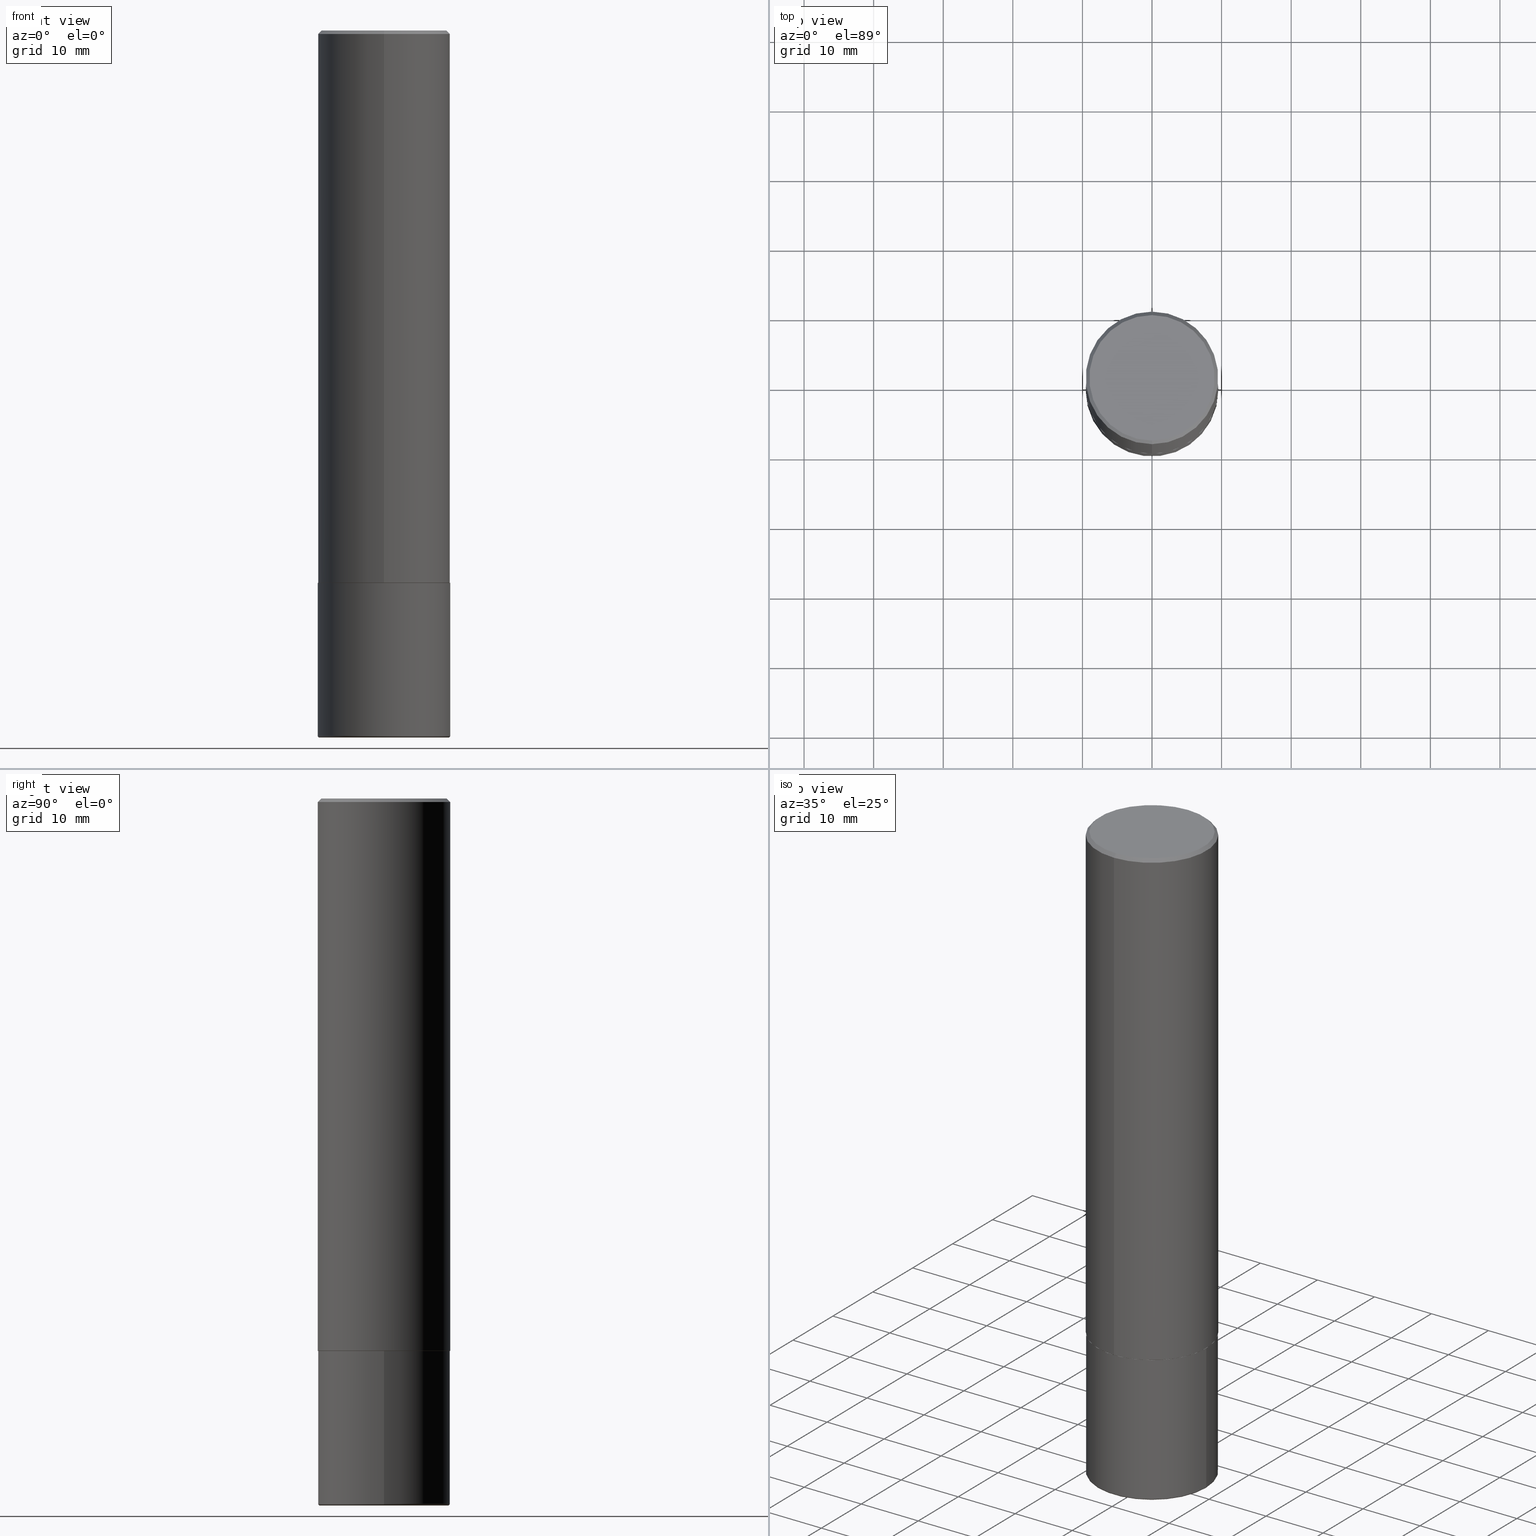
[diagram: canonical four-view strip — front | top / right | iso, engineering-drawing reading convention]
A machine part, canonical four-view strip (front | top / right | iso — engineering-drawing reading convention). The complete STEP part file that produces these views, byte-faithful:
ISO-10303-21;
HEADER;
FILE_DESCRIPTION (( 'STEP AP203' ),
    '1' );
FILE_NAME ('38861.STEP',
    '2024-03-03T17:46:12',
    ( '' ),
    ( '' ),
    'SwSTEP 2.0',
    'SolidWorks 2023',
    '' );
FILE_SCHEMA (( 'CONFIG_CONTROL_DESIGN' ));
ENDSEC;

DATA;
#1 = CARTESIAN_POINT ( 'NONE',  ( 9.757420536678694842E-29, -1.393101054198414910E-14, -3.989999999999999769 ) ) ;
#2 = DIRECTION ( 'NONE',  ( 0.000000000000000000, 0.000000000000000000, 1.000000000000000000 ) ) ;
#3 = CC_DESIGN_PERSON_AND_ORGANIZATION_ASSIGNMENT ( #94, #6, ( #326 ) ) ;
#4 = AXIS2_PLACEMENT_3D ( 'NONE', #348, #188, #56 ) ;
#5 = ORIENTED_EDGE ( 'NONE', *, *, #101, .F. ) ;
#6 = PERSON_AND_ORGANIZATION_ROLE ( 'creator' ) ;
#7 = FACE_OUTER_BOUND ( 'NONE', #80, .T. ) ;
#8 = VERTEX_POINT ( 'NONE', #112 ) ;
#9 = DIRECTION ( 'NONE',  ( -1.000000000000000000, 6.982962677686265922E-15, -4.876176775795935793E-29 ) ) ;
#10 = COORDINATED_UNIVERSAL_TIME_OFFSET ( 5, 0, .BEHIND. ) ;
#11 = AXIS2_PLACEMENT_3D ( 'NONE', #104, #197, #13 ) ;
#12 = APPROVAL_PERSON_ORGANIZATION ( #138, #379, #52 ) ;
#13 = DIRECTION ( 'NONE',  ( -6.982962677686265922E-15, -1.000000000000000000, 3.490725905101792021E-15 ) ) ;
#14 = ORIENTED_EDGE ( 'NONE', *, *, #101, .T. ) ;
#15 = ORIENTED_EDGE ( 'NONE', *, *, #234, .F. ) ;
#16 = LINE ( 'NONE', #113, #401 ) ;
#17 = CARTESIAN_POINT ( 'NONE',  ( 0.3649999999999999356, -1.647979191933963740E-14, -3.989999999999999769 ) ) ;
#18 = LINE ( 'NONE', #117, #273 ) ;
#19 = PERSON_AND_ORGANIZATION_ROLE ( 'classification_officer' ) ;
#20 = DIRECTION ( 'NONE',  ( 1.000000000000000000, -6.982962677686262766E-15, 0.000000000000000000 ) ) ;
#21 = CC_DESIGN_PERSON_AND_ORGANIZATION_ASSIGNMENT ( #391, #289, ( #318 ) ) ;
#22 = CIRCLE ( 'NONE', #288, 0.01000000000000009909 ) ;
#23 = DIRECTION ( 'NONE',  ( -2.445468806185136877E-29, 3.491481338843145188E-15, 1.000000000000000000 ) ) ;
#24 = CARTESIAN_POINT ( 'NONE',  ( 2.618611004132351200E-15, 0.3750000000000000555, -0.02000000000000139513 ) ) ;
#25 = CC_DESIGN_PERSON_AND_ORGANIZATION_ASSIGNMENT ( #383, #105, ( #88 ) ) ;
#26 = DIRECTION ( 'NONE',  ( -6.982962677686266711E-15, -1.000000000000000000, 3.490725905101792415E-15 ) ) ;
#27 = CIRCLE ( 'NONE', #4, 0.3549999999999999822 ) ;
#28 = EDGE_CURVE ( 'NONE', #291, #232, #170, .T. ) ;
#29 = DIRECTION ( 'NONE',  ( -2.445996322747269804E-29, 3.490725905101792415E-15, 1.000000000000000000 ) ) ;
#30 = CARTESIAN_POINT ( 'NONE',  ( 7.643738508585217927E-29, -1.090851845344310125E-14, -3.125000000000000000 ) ) ;
#31 = SHAPE_DEFINITION_REPRESENTATION ( #73, #393 ) ;
#32 = EDGE_LOOP ( 'NONE', ( #5, #259, #74, #100 ) ) ;
#33 = CIRCLE ( 'NONE', #199, 0.3750000000000000555 ) ;
#34 = ORIENTED_EDGE ( 'NONE', *, *, #323, .T. ) ;
#35 = CARTESIAN_POINT ( 'NONE',  ( 0.000000000000000000, 0.000000000000000000, 0.000000000000000000 ) ) ;
#36 = CONICAL_SURFACE ( 'NONE', #414, 0.3750000000000001110, 0.7853981633974463916 ) ;
#37 = APPROVAL_ROLE ( '' ) ;
#38 = ORIENTED_EDGE ( 'NONE', *, *, #374, .T. ) ;
#39 = COORDINATED_UNIVERSAL_TIME_OFFSET ( 5, 0, .BEHIND. ) ;
#40 = CC_DESIGN_DATE_AND_TIME_ASSIGNMENT ( #390, #84, ( #134 ) ) ;
#41 = ORIENTED_EDGE ( 'NONE', *, *, #185, .T. ) ;
#42 = ORIENTED_EDGE ( 'NONE', *, *, #193, .F. ) ;
#43 = LINE ( 'NONE', #91, #335 ) ;
#44 = APPROVAL ( #295, 'UNSPECIFIED' ) ;
#45 = VERTEX_POINT ( 'NONE', #364 ) ;
#46 = DIRECTION ( 'NONE',  ( 1.000000000000000000, -6.982962677686266711E-15, 0.000000000000000000 ) ) ;
#47 = AXIS2_PLACEMENT_3D ( 'NONE', #149, #175, #310 ) ;
#48 = CARTESIAN_POINT ( 'NONE',  ( 0.3749999999999999445, -2.618611004132349622E-15, 1.828566290923475642E-29 ) ) ;
#49 = EDGE_CURVE ( 'NONE', #162, #103, #53, .T. ) ;
#50 = VERTEX_POINT ( 'NONE', #141 ) ;
#51 = FACE_OUTER_BOUND ( 'NONE', #224, .T. ) ;
#52 = APPROVAL_ROLE ( '' ) ;
#53 = CIRCLE ( 'NONE', #144, 0.3750000000000003886 ) ;
#54 = AXIS2_PLACEMENT_3D ( 'NONE', #209, #342, #173 ) ;
#55 = CALENDAR_DATE ( 2024, 3, 3 ) ;
#56 = DIRECTION ( 'NONE',  ( -6.982962677686265922E-15, -1.000000000000000000, 3.490725905101791626E-15 ) ) ;
#57 = CARTESIAN_POINT ( 'NONE',  ( 4.891992645494561398E-31, -6.981451810203614264E-17, -0.02000000000000008715 ) ) ;
#58 = AXIS2_PLACEMENT_3D ( 'NONE', #251, #218, #189 ) ;
#59 = CIRCLE ( 'NONE', #89, 0.3750000000000001110 ) ;
#60 = FACE_OUTER_BOUND ( 'NONE', #380, .T. ) ;
#61 = AXIS2_PLACEMENT_3D ( 'NONE', #406, #157, #285 ) ;
#62 = DATE_AND_TIME ( #217, #260 ) ;
#63 = ORIENTED_EDGE ( 'NONE', *, *, #238, .T. ) ;
#64 = EDGE_CURVE ( 'NONE', #331, #162, #18, .T. ) ;
#65 = APPROVAL_DATE_TIME ( #262, #44 ) ;
#66 = CARTESIAN_POINT ( 'NONE',  ( -0.3649999999999999356, -1.133752955645978349E-14, -3.989999999999999769 ) ) ;
#67 = DIRECTION ( 'NONE',  ( 1.000000000000000000, -6.982962677686267499E-15, 4.883557194083113462E-29 ) ) ;
#68 = PLANE ( 'NONE',  #111 ) ;
#69 = EDGE_LOOP ( 'NONE', ( #86, #327 ) ) ;
#70 = CYLINDRICAL_SURFACE ( 'NONE', #87, 0.3749999999999999445 ) ;
#71 = APPROVAL_ROLE ( '' ) ;
#72 = VECTOR ( 'NONE', #278, 39.37007874015748143 ) ;
#73 = PRODUCT_DEFINITION_SHAPE ( 'NONE', 'NONE',  #326 ) ;
#74 = ORIENTED_EDGE ( 'NONE', *, *, #110, .T. ) ;
#75 = DIRECTION ( 'NONE',  ( 1.000000000000000000, -6.982962677686266711E-15, 4.876176775795935793E-29 ) ) ;
#76 = DIRECTION ( 'NONE',  ( 1.000000000000000000, 0.000000000000000000, 0.000000000000000000 ) ) ;
#77 = FACE_OUTER_BOUND ( 'NONE', #152, .T. ) ;
#78 = ORIENTED_EDGE ( 'NONE', *, *, #28, .F. ) ;
#79 = APPROVAL_DATE_TIME ( #108, #379 ) ;
#80 = EDGE_LOOP ( 'NONE', ( #324, #95, #42, #169 ) ) ;
#81 = EDGE_LOOP ( 'NONE', ( #332, #294, #320, #178 ) ) ;
#82 = EDGE_CURVE ( 'NONE', #339, #232, #166, .T. ) ;
#83 = EDGE_LOOP ( 'NONE', ( #245, #123, #270, #180 ) ) ;
#84 = DATE_TIME_ROLE ( 'classification_date' ) ;
#85 = CYLINDRICAL_SURFACE ( 'NONE', #61, 0.3749999999999999445 ) ;
#86 = ORIENTED_EDGE ( 'NONE', *, *, #165, .T. ) ;
#87 = AXIS2_PLACEMENT_3D ( 'NONE', #292, #132, #75 ) ;
#88 = PRODUCT_DEFINITION_FORMATION_WITH_SPECIFIED_SOURCE ( 'ANY', '', #318, .NOT_KNOWN. ) ;
#89 = AXIS2_PLACEMENT_3D ( 'NONE', #306, #204, #277 ) ;
#90 = DIRECTION ( 'NONE',  ( -2.445996322747269804E-29, 3.490725905101792415E-15, 1.000000000000000000 ) ) ;
#91 = CARTESIAN_POINT ( 'NONE',  ( -2.611628041454587088E-15, -0.3740000000000109348, -3.124999999999999112 ) ) ;
#92 = VECTOR ( 'NONE', #311, 39.37007874015748143 ) ;
#93 = CARTESIAN_POINT ( 'NONE',  ( 0.3649999999999999356, -1.651470673272807063E-14, -4.000000000000000000 ) ) ;
#94 = PERSON_AND_ORGANIZATION ( #337, #206 ) ;
#95 = ORIENTED_EDGE ( 'NONE', *, *, #397, .T. ) ;
#96 = DIRECTION ( 'NONE',  ( 1.000000000000000000, -6.982962677686263555E-15, 0.000000000000000000 ) ) ;
#97 = CC_DESIGN_APPROVAL ( #340, ( #88 ) ) ;
#98 = LENGTH_MEASURE_WITH_UNIT ( LENGTH_MEASURE( 0.02539999999999999897 ), #325 );
#99 = FACE_OUTER_BOUND ( 'NONE', #158, .T. ) ;
#100 = ORIENTED_EDGE ( 'NONE', *, *, #221, .F. ) ;
#101 = EDGE_CURVE ( 'NONE', #8, #154, #179, .T. ) ;
#102 = PERSON_AND_ORGANIZATION ( #337, #206 ) ;
#103 = VERTEX_POINT ( 'NONE', #202 ) ;
#104 = CARTESIAN_POINT ( 'NONE',  ( 7.643738508585217927E-29, -1.090851845344310125E-14, -3.125000000000000000 ) ) ;
#105 = PERSON_AND_ORGANIZATION_ROLE ( 'design_supplier' ) ;
#106 = PLANE ( 'NONE',  #398 ) ;
#107 = AXIS2_PLACEMENT_3D ( 'NONE', #247, #130, #160 ) ;
#108 = DATE_AND_TIME ( #55, #297 ) ;
#109 = PLANE ( 'NONE',  #11 ) ;
#110 = EDGE_CURVE ( 'NONE', #45, #373, #150, .T. ) ;
#111 = AXIS2_PLACEMENT_3D ( 'NONE', #418, #389, #126 ) ;
#112 = CARTESIAN_POINT ( 'NONE',  ( -2.504081769186608610E-15, -0.3549999999999999822, 1.358457867055767357E-15 ) ) ;
#113 = CARTESIAN_POINT ( 'NONE',  ( -0.3749999999999999445, 2.664535259100375303E-15, -1.844600658845589318E-29 ) ) ;
#114 = DIRECTION ( 'NONE',  ( -2.445996322747269804E-29, 3.490725905101792415E-15, 1.000000000000000000 ) ) ;
#115 = CIRCLE ( 'NONE', #176, 0.3749999999999999445 ) ;
#116 = VECTOR ( 'NONE', #377, 39.37007874015748143 ) ;
#117 = CARTESIAN_POINT ( 'NONE',  ( 2.657429831742851208E-15, 0.3739999999999891189, -3.125000000000001332 ) ) ;
#118 = LINE ( 'NONE', #237, #116 ) ;
#119 = EDGE_CURVE ( 'NONE', #416, #339, #16, .T. ) ;
#120 = CARTESIAN_POINT ( 'NONE',  ( -2.572686749164324336E-15, -0.3750000000000001665, -0.01999999999999877570 ) ) ;
#121 = CIRCLE ( 'NONE', #402, 0.3649999999999999356 ) ;
#122 = FACE_OUTER_BOUND ( 'NONE', #345, .T. ) ;
#123 = ORIENTED_EDGE ( 'NONE', *, *, #64, .T. ) ;
#124 = CALENDAR_DATE ( 2024, 3, 3 ) ;
#125 = APPROVAL_STATUS ( 'not_yet_approved' ) ;
#126 = DIRECTION ( 'NONE',  ( -1.000000000000000000, 6.982962677686265922E-15, -4.876176775795935793E-29 ) ) ;
#127 = AXIS2_PLACEMENT_3D ( 'NONE', #388, #354, #67 ) ;
#128 =( NAMED_UNIT ( * ) SI_UNIT ( $, .STERADIAN. ) SOLID_ANGLE_UNIT ( ) );
#129 = ORIENTED_EDGE ( 'NONE', *, *, #233, .F. ) ;
#130 = DIRECTION ( 'NONE',  ( -2.445996322747269804E-29, 3.490725905101792415E-15, 1.000000000000000000 ) ) ;
#131 = ORIENTED_EDGE ( 'NONE', *, *, #201, .F. ) ;
#132 = DIRECTION ( 'NONE',  ( -2.445468806185136597E-29, 3.491481338843145583E-15, 1.000000000000000000 ) ) ;
#133 = ADVANCED_FACE ( 'NONE', ( #51 ), #369, .T. ) ;
#134 = SECURITY_CLASSIFICATION ( '', '', #223 ) ;
#135 = CARTESIAN_POINT ( 'NONE',  ( 7.642090019328551865E-29, -1.091087918388483118E-14, -3.125000000000000000 ) ) ;
#136 = UNCERTAINTY_MEASURE_WITH_UNIT (LENGTH_MEASURE( 1.000000000000000082E-05 ), #283, 'distance_accuracy_value', 'NONE');
#137 = ADVANCED_FACE ( 'NONE', ( #77 ), #106, .T. ) ;
#138 = PERSON_AND_ORGANIZATION ( #337, #206 ) ;
#139 = AXIS2_PLACEMENT_3D ( 'NONE', #210, #90, #211 ) ;
#140 = DIRECTION ( 'NONE',  ( 5.024295867789434219E-15, 0.7071067811867430830, 0.7071067811863519514 ) ) ;
#141 = CARTESIAN_POINT ( 'NONE',  ( -0.3649999999999999356, -1.131945982636599743E-14, -4.000000000000000000 ) ) ;
#142 = ADVANCED_FACE ( 'NONE', ( #357 ), #109, .F. ) ;
#143 = CARTESIAN_POINT ( 'NONE',  ( 2.618611004132351200E-15, 0.3750000000000000555, -0.02000000000000139513 ) ) ;
#144 = AXIS2_PLACEMENT_3D ( 'NONE', #272, #114, #371 ) ;
#145 = AXIS2_PLACEMENT_3D ( 'NONE', #303, #400, #268 ) ;
#146 = DIMENSIONAL_EXPONENTS ( 1.000000000000000000, 0.000000000000000000, 0.000000000000000000, 0.000000000000000000, 0.000000000000000000, 0.000000000000000000, 0.000000000000000000 ) ;
#147 = ADVANCED_FACE ( 'NONE', ( #321 ), #70, .T. ) ;
#148 = LINE ( 'NONE', #346, #72 ) ;
#149 = CARTESIAN_POINT ( 'NONE',  ( 4.891992645494561398E-31, -6.981451810203614264E-17, -0.02000000000000008715 ) ) ;
#150 = CIRCLE ( 'NONE', #307, 0.3750000000000001110 ) ;
#151 = CIRCLE ( 'NONE', #344, 0.3739999999999999991 ) ;
#152 = EDGE_LOOP ( 'NONE', ( #258, #395 ) ) ;
#153 = VERTEX_POINT ( 'NONE', #257 ) ;
#154 = VERTEX_POINT ( 'NONE', #399 ) ;
#155 = DIRECTION ( 'NONE',  ( -2.445468806185136597E-29, 3.491481338843145583E-15, 1.000000000000000000 ) ) ;
#156 = FACE_OUTER_BOUND ( 'NONE', #83, .T. ) ;
#157 = DIRECTION ( 'NONE',  ( -2.445468806185136597E-29, 3.491481338843145583E-15, 1.000000000000000000 ) ) ;
#158 = EDGE_LOOP ( 'NONE', ( #230, #194, #305, #183 ) ) ;
#159 = ORIENTED_EDGE ( 'NONE', *, *, #361, .F. ) ;
#160 = DIRECTION ( 'NONE',  ( -6.982962677686265922E-15, -1.000000000000000000, 2.913971193241877611E-15 ) ) ;
#161 = DIRECTION ( 'NONE',  ( -2.445468806185136597E-29, 3.491481338843145583E-15, 1.000000000000000000 ) ) ;
#162 = VERTEX_POINT ( 'NONE', #360 ) ;
#163 =( NAMED_UNIT ( * ) PLANE_ANGLE_UNIT ( ) SI_UNIT ( $, .RADIAN. ) );
#164 = CARTESIAN_POINT ( 'NONE',  ( 9.781875224740546387E-29, -1.396592535537258233E-14, -4.000000000000000000 ) ) ;
#165 = EDGE_CURVE ( 'NONE', #232, #339, #33, .T. ) ;
#166 = CIRCLE ( 'NONE', #384, 0.3750000000000000555 ) ;
#167 = DIRECTION ( 'NONE',  ( 1.000000000000000000, -6.982962677686267499E-15, 0.000000000000000000 ) ) ;
#168 = CC_DESIGN_SECURITY_CLASSIFICATION ( #134, ( #88 ) ) ;
#169 = ORIENTED_EDGE ( 'NONE', *, *, #215, .F. ) ;
#170 = LINE ( 'NONE', #48, #205 ) ;
#171 = DIRECTION ( 'NONE',  ( -6.982962677686265922E-15, -1.000000000000000000, 3.490725905101791626E-15 ) ) ;
#172 = MANIFOLD_SOLID_BREP ( 'Body-Move/Copy2[1]', #333 ) ;
#173 = DIRECTION ( 'NONE',  ( 6.982962677686265922E-15, 1.000000000000000000, -3.490725905101792021E-15 ) ) ;
#174 = MANIFOLD_SOLID_BREP ( 'Body-Move/Copy2[2]', #190 ) ;
#175 = DIRECTION ( 'NONE',  ( 2.445996322747269804E-29, -3.490725905101792415E-15, -1.000000000000000000 ) ) ;
#176 = AXIS2_PLACEMENT_3D ( 'NONE', #1, #228, #96 ) ;
#177 = APPROVAL_PERSON_ORGANIZATION ( #330, #44, #71 ) ;
#178 = ORIENTED_EDGE ( 'NONE', *, *, #82, .F. ) ;
#179 = CIRCLE ( 'NONE', #240, 0.3549999999999999822 ) ;
#180 = ORIENTED_EDGE ( 'NONE', *, *, #276, .F. ) ;
#181 = TOROIDAL_SURFACE ( 'NONE', #127, 0.3649999999999999356, 0.01000000000000009909 ) ;
#182 = DATE_TIME_ROLE ( 'creation_date' ) ;
#183 = ORIENTED_EDGE ( 'NONE', *, *, #49, .F. ) ;
#184 = DIRECTION ( 'NONE',  ( 2.438088387897960049E-29, -3.491481338843145188E-15, -1.000000000000000000 ) ) ;
#185 = EDGE_CURVE ( 'NONE', #50, #248, #316, .T. ) ;
#186 = APPLICATION_PROTOCOL_DEFINITION ( 'international standard', 'config_control_design', 1994, #255 ) ;
#187 = DIRECTION ( 'NONE',  ( -1.000000000000000000, 7.105427357601049190E-15, 0.000000000000000000 ) ) ;
#188 = DIRECTION ( 'NONE',  ( -2.445996322747269804E-29, 3.490725905101792415E-15, 1.000000000000000000 ) ) ;
#189 = DIRECTION ( 'NONE',  ( 1.000000000000000000, -6.982962677686263555E-15, 0.000000000000000000 ) ) ;
#190 = CLOSED_SHELL ( 'NONE', ( #407, #133, #227, #271, #334, #263, #142, #367 ) ) ;
#191 = AXIS2_PLACEMENT_3D ( 'NONE', #35, #381, #26 ) ;
#192 = DIRECTION ( 'NONE',  ( -6.982962677686266711E-15, -1.000000000000000000, 2.921762560068730595E-15 ) ) ;
#193 = EDGE_CURVE ( 'NONE', #291, #416, #115, .T. ) ;
#194 = ORIENTED_EDGE ( 'NONE', *, *, #279, .T. ) ;
#195 = ORIENTED_EDGE ( 'NONE', *, *, #233, .T. ) ;
#196 = APPLICATION_PROTOCOL_DEFINITION ( 'international standard', 'config_control_design', 1994, #242 ) ;
#197 = DIRECTION ( 'NONE',  ( -2.445996322747270084E-29, 3.490725905101792021E-15, 1.000000000000000000 ) ) ;
#198 = DIRECTION ( 'NONE',  ( 1.000000000000000000, -6.982962677686266711E-15, 0.000000000000000000 ) ) ;
#199 = AXIS2_PLACEMENT_3D ( 'NONE', #135, #155, #46 ) ;
#200 = AXIS2_PLACEMENT_3D ( 'NONE', #394, #351, #386 ) ;
#201 = EDGE_CURVE ( 'NONE', #416, #291, #349, .T. ) ;
#202 = CARTESIAN_POINT ( 'NONE',  ( -2.618611004132276258E-15, -0.3750000000000113243, -3.123999999999999222 ) ) ;
#203 = CARTESIAN_POINT ( 'NONE',  ( 0.000000000000000000, 0.000000000000000000, 0.000000000000000000 ) ) ;
#204 = DIRECTION ( 'NONE',  ( -2.445996322747269804E-29, 3.490725905101792415E-15, 1.000000000000000000 ) ) ;
#205 = VECTOR ( 'NONE', #265, 39.37007874015748143 ) ;
#206 = ORGANIZATION ( 'UNSPECIFIED', 'UNSPECIFIED', '' ) ;
#207 = ADVANCED_FACE ( 'NONE', ( #7 ), #287, .T. ) ;
#208 = DIRECTION ( 'NONE',  ( -4.937700262165896205E-15, -0.7071067811867381980, 0.7071067811863568364 ) ) ;
#209 = CARTESIAN_POINT ( 'NONE',  ( 2.478951750578624209E-15, 0.3549999999999999822, -1.179582610938820655E-15 ) ) ;
#210 = CARTESIAN_POINT ( 'NONE',  ( 7.643738508585217927E-29, -1.090851845344310125E-14, -3.125000000000000000 ) ) ;
#211 = DIRECTION ( 'NONE',  ( -6.982962677686266711E-15, -1.000000000000000000, 2.921762560068730595E-15 ) ) ;
#212 = EDGE_CURVE ( 'NONE', #248, #50, #121, .T. ) ;
#213 = LOCAL_TIME ( 12, 46, 12.00000000000000000, #387 ) ;
#214 = LINE ( 'NONE', #120, #92 ) ;
#215 = EDGE_CURVE ( 'NONE', #248, #291, #22, .T. ) ;
#216 = FACE_OUTER_BOUND ( 'NONE', #69, .T. ) ;
#217 = CALENDAR_DATE ( 2024, 3, 3 ) ;
#218 = DIRECTION ( 'NONE',  ( -2.445468806185136597E-29, 3.491481338843145583E-15, 1.000000000000000000 ) ) ;
#219 = AXIS2_PLACEMENT_3D ( 'NONE', #358, #2, #76 ) ;
#220 = CARTESIAN_POINT ( 'NONE',  ( 9.781875224740546387E-29, -1.396592535537258233E-14, -4.000000000000000000 ) ) ;
#221 = EDGE_CURVE ( 'NONE', #154, #373, #404, .T. ) ;
#222 = EDGE_LOOP ( 'NONE', ( #159, #309 ) ) ;
#223 = SECURITY_CLASSIFICATION_LEVEL ( 'unclassified' ) ;
#224 = EDGE_LOOP ( 'NONE', ( #304, #38, #298, #392 ) ) ;
#225 = DATE_AND_TIME ( #124, #213 ) ;
#226 = CARTESIAN_POINT ( 'NONE',  ( 9.781875224740546387E-29, -1.396592535537258233E-14, -4.000000000000000000 ) ) ;
#227 = ADVANCED_FACE ( 'NONE', ( #410 ), #241, .T. ) ;
#228 = DIRECTION ( 'NONE',  ( -2.445468806185136597E-29, 3.491481338843145583E-15, 1.000000000000000000 ) ) ;
#229 = EDGE_LOOP ( 'NONE', ( #281, #41, #269, #131 ) ) ;
#230 = ORIENTED_EDGE ( 'NONE', *, *, #64, .F. ) ;
#231 = CIRCLE ( 'NONE', #252, 0.01000000000000009909 ) ;
#232 = VERTEX_POINT ( 'NONE', #239 ) ;
#233 = EDGE_CURVE ( 'NONE', #373, #45, #59, .T. ) ;
#234 = EDGE_CURVE ( 'NONE', #8, #45, #214, .T. ) ;
#235 = CC_DESIGN_APPROVAL ( #44, ( #326 ) ) ;
#236 = CARTESIAN_POINT ( 'NONE',  ( 7.642090019328551865E-29, -1.091087918388483118E-14, -3.125000000000000000 ) ) ;
#237 = CARTESIAN_POINT ( 'NONE',  ( 2.664535259100376880E-15, 0.3750000000000002220, -1.309022214413172994E-15 ) ) ;
#238 = EDGE_CURVE ( 'NONE', #103, #45, #148, .T. ) ;
#239 = CARTESIAN_POINT ( 'NONE',  ( 0.3750000000000000555, -1.352949018801718119E-14, -3.125000000000000000 ) ) ;
#240 = AXIS2_PLACEMENT_3D ( 'NONE', #366, #336, #171 ) ;
#241 = CONICAL_SURFACE ( 'NONE', #47, 0.3750000000000001110, 0.7853981633974463916 ) ;
#242 = APPLICATION_CONTEXT ( 'configuration controlled 3d designs of mechanical parts and assemblies' ) ;
#243 = CARTESIAN_POINT ( 'NONE',  ( 2.660982545421652501E-15, 0.3739999999999891189, -3.125000000000001332 ) ) ;
#244 = FACE_OUTER_BOUND ( 'NONE', #368, .T. ) ;
#245 = ORIENTED_EDGE ( 'NONE', *, *, #361, .T. ) ;
#246 = PLANE ( 'NONE',  #54 ) ;
#247 = CARTESIAN_POINT ( 'NONE',  ( 7.641292512262471991E-29, -1.090502772753799986E-14, -3.124000000000000554 ) ) ;
#248 = VERTEX_POINT ( 'NONE', #93 ) ;
#249 = PERSON_AND_ORGANIZATION_ROLE ( 'creator' ) ;
#250 = PRODUCT_RELATED_PRODUCT_CATEGORY ( 'detail', '', ( #318 ) ) ;
#251 = CARTESIAN_POINT ( 'NONE',  ( 9.757420536678694842E-29, -1.393101054198414910E-14, -3.989999999999999769 ) ) ;
#252 = AXIS2_PLACEMENT_3D ( 'NONE', #66, #347, #187 ) ;
#253 = CALENDAR_DATE ( 2024, 3, 3 ) ;
#254 = ADVANCED_FACE ( 'NONE', ( #216 ), #68, .F. ) ;
#255 = APPLICATION_CONTEXT ( 'configuration controlled 3d designs of mechanical parts and assemblies' ) ;
#256 = APPROVAL_DATE_TIME ( #225, #340 ) ;
#257 = CARTESIAN_POINT ( 'NONE',  ( -2.611628041454587088E-15, -0.3740000000000109348, -3.124999999999999112 ) ) ;
#258 = ORIENTED_EDGE ( 'NONE', *, *, #212, .F. ) ;
#259 = ORIENTED_EDGE ( 'NONE', *, *, #234, .T. ) ;
#260 = LOCAL_TIME ( 12, 46, 12.00000000000000000, #322 ) ;
#261 = LOCAL_TIME ( 12, 46, 12.00000000000000000, #10 ) ;
#262 = DATE_AND_TIME ( #253, #261 ) ;
#263 = ADVANCED_FACE ( 'NONE', ( #99 ), #274, .T. ) ;
#264 = ORIENTED_EDGE ( 'NONE', *, *, #323, .F. ) ;
#265 = DIRECTION ( 'NONE',  ( -2.445468806185136877E-29, 3.491481338843145188E-15, 1.000000000000000000 ) ) ;
#266 = CC_DESIGN_PERSON_AND_ORGANIZATION_ASSIGNMENT ( #353, #19, ( #134 ) ) ;
#267 = VECTOR ( 'NONE', #341, 39.37007874015748143 ) ;
#268 = DIRECTION ( 'NONE',  ( -6.982962677686266711E-15, -1.000000000000000000, 2.921762560068730595E-15 ) ) ;
#269 = ORIENTED_EDGE ( 'NONE', *, *, #215, .T. ) ;
#270 = ORIENTED_EDGE ( 'NONE', *, *, #300, .F. ) ;
#271 = ADVANCED_FACE ( 'NONE', ( #244 ), #36, .T. ) ;
#272 = CARTESIAN_POINT ( 'NONE',  ( 7.641292512262471991E-29, -1.090502772753799986E-14, -3.124000000000000554 ) ) ;
#273 = VECTOR ( 'NONE', #140, 39.37007874015748143 ) ;
#274 = CONICAL_SURFACE ( 'NONE', #139, 0.3739999999999999991, 0.7853981633977213939 ) ;
#275 = DIRECTION ( 'NONE',  ( 2.445996322747269804E-29, -3.490725905101792415E-15, -1.000000000000000000 ) ) ;
#276 = EDGE_CURVE ( 'NONE', #153, #103, #43, .T. ) ;
#277 = DIRECTION ( 'NONE',  ( -6.982962677686265922E-15, -1.000000000000000000, 3.494488891895535640E-15 ) ) ;
#278 = DIRECTION ( 'NONE',  ( -2.445996322747270084E-29, 3.490725905101792021E-15, 1.000000000000000000 ) ) ;
#279 = EDGE_CURVE ( 'NONE', #331, #153, #378, .T. ) ;
#280 = DIRECTION ( 'NONE',  ( -2.445996322747269804E-29, 3.490725905101792415E-15, 1.000000000000000000 ) ) ;
#281 = ORIENTED_EDGE ( 'NONE', *, *, #397, .F. ) ;
#282 = ORIENTED_EDGE ( 'NONE', *, *, #49, .T. ) ;
#283 =( CONVERSION_BASED_UNIT ( 'INCH', #98 ) LENGTH_UNIT ( ) NAMED_UNIT ( #146 ) );
#284 = CARTESIAN_POINT ( 'NONE',  ( -0.3749999999999999445, -1.126647528288377341E-14, -3.989999999999999769 ) ) ;
#285 = DIRECTION ( 'NONE',  ( 1.000000000000000000, -6.982962677686266711E-15, 4.876176775795935793E-29 ) ) ;
#286 = ADVANCED_FACE ( 'NONE', ( #405 ), #85, .T. ) ;
#287 = TOROIDAL_SURFACE ( 'NONE', #200, 0.3649999999999999356, 0.01000000000000009909 ) ;
#288 = AXIS2_PLACEMENT_3D ( 'NONE', #17, #365, #20 ) ;
#289 = PERSON_AND_ORGANIZATION_ROLE ( 'design_owner' ) ;
#290 = CC_DESIGN_DATE_AND_TIME_ASSIGNMENT ( #62, #182, ( #326 ) ) ;
#291 = VERTEX_POINT ( 'NONE', #293 ) ;
#292 = CARTESIAN_POINT ( 'NONE',  ( 0.000000000000000000, 0.000000000000000000, 0.000000000000000000 ) ) ;
#293 = CARTESIAN_POINT ( 'NONE',  ( 0.3749999999999999445, -1.654962154611649754E-14, -3.989999999999999769 ) ) ;
#294 = ORIENTED_EDGE ( 'NONE', *, *, #201, .T. ) ;
#295 = APPROVAL_STATUS ( 'not_yet_approved' ) ;
#296 = AXIS2_PLACEMENT_3D ( 'NONE', #164, #161, #382 ) ;
#297 = LOCAL_TIME ( 12, 46, 12.00000000000000000, #39 ) ;
#298 = ORIENTED_EDGE ( 'NONE', *, *, #110, .F. ) ;
#299 = DIRECTION ( 'NONE',  ( -2.445996322747269804E-29, 3.490725905101792415E-15, 1.000000000000000000 ) ) ;
#300 = EDGE_CURVE ( 'NONE', #103, #162, #302, .T. ) ;
#301 = DIRECTION ( 'NONE',  ( -6.982962677686265922E-15, -1.000000000000000000, 3.494488891895535640E-15 ) ) ;
#302 = CIRCLE ( 'NONE', #107, 0.3750000000000003886 ) ;
#303 = CARTESIAN_POINT ( 'NONE',  ( 7.643738508585217927E-29, -1.090851845344310125E-14, -3.125000000000000000 ) ) ;
#304 = ORIENTED_EDGE ( 'NONE', *, *, #300, .T. ) ;
#305 = ORIENTED_EDGE ( 'NONE', *, *, #276, .T. ) ;
#306 = CARTESIAN_POINT ( 'NONE',  ( 4.891992645494561398E-31, -6.981451810203614264E-17, -0.02000000000000008715 ) ) ;
#307 = AXIS2_PLACEMENT_3D ( 'NONE', #338, #299, #301 ) ;
#308 =( GEOMETRIC_REPRESENTATION_CONTEXT ( 3 ) GLOBAL_UNCERTAINTY_ASSIGNED_CONTEXT ( ( #136 ) ) GLOBAL_UNIT_ASSIGNED_CONTEXT ( ( #283, #163, #128 ) ) REPRESENTATION_CONTEXT ( 'NONE', 'WORKASPACE' ) );
#309 = ORIENTED_EDGE ( 'NONE', *, *, #279, .F. ) ;
#310 = DIRECTION ( 'NONE',  ( 6.982962677686265922E-15, 1.000000000000000000, -3.494488891895535640E-15 ) ) ;
#311 = DIRECTION ( 'NONE',  ( -4.851104656540954020E-15, -0.7071067811865485719, -0.7071067811865464625 ) ) ;
#312 = DIRECTION ( 'NONE',  ( -6.982962677686266711E-15, -1.000000000000000000, 3.490725905101792415E-15 ) ) ;
#313 = ADVANCED_FACE ( 'NONE', ( #315 ), #181, .T. ) ;
#314 = CYLINDRICAL_SURFACE ( 'NONE', #191, 0.3750000000000002220 ) ;
#315 = FACE_OUTER_BOUND ( 'NONE', #229, .T. ) ;
#316 = CIRCLE ( 'NONE', #296, 0.3649999999999999356 ) ;
#317 = APPROVAL_PERSON_ORGANIZATION ( #417, #340, #37 ) ;
#318 = PRODUCT ( '38861', '38861', '', ( #396 ) ) ;
#319 = APPROVAL_STATUS ( 'not_yet_approved' ) ;
#320 = ORIENTED_EDGE ( 'NONE', *, *, #28, .T. ) ;
#321 = FACE_OUTER_BOUND ( 'NONE', #81, .T. ) ;
#322 = COORDINATED_UNIVERSAL_TIME_OFFSET ( 5, 0, .BEHIND. ) ;
#323 = EDGE_CURVE ( 'NONE', #154, #8, #27, .T. ) ;
#324 = ORIENTED_EDGE ( 'NONE', *, *, #212, .T. ) ;
#325 =( LENGTH_UNIT ( ) NAMED_UNIT ( * ) SI_UNIT ( $, .METRE. ) );
#326 = PRODUCT_DEFINITION ( 'UNKNOWN', '', #88, #412 ) ;
#327 = ORIENTED_EDGE ( 'NONE', *, *, #82, .T. ) ;
#328 = DIRECTION ( 'NONE',  ( -2.445468806185136597E-29, 3.491481338843145583E-15, 1.000000000000000000 ) ) ;
#329 = CARTESIAN_POINT ( 'NONE',  ( 7.643738508585217927E-29, -1.090851845344310125E-14, -3.125000000000000000 ) ) ;
#330 = PERSON_AND_ORGANIZATION ( #337, #206 ) ;
#331 = VERTEX_POINT ( 'NONE', #243 ) ;
#332 = ORIENTED_EDGE ( 'NONE', *, *, #119, .F. ) ;
#333 = CLOSED_SHELL ( 'NONE', ( #286, #207, #254, #147, #313, #137 ) ) ;
#334 = ADVANCED_FACE ( 'NONE', ( #60 ), #314, .T. ) ;
#335 = VECTOR ( 'NONE', #208, 39.37007874015748143 ) ;
#336 = DIRECTION ( 'NONE',  ( -2.445996322747269804E-29, 3.490725905101792415E-15, 1.000000000000000000 ) ) ;
#337 = PERSON ( 'UNSPECIFIED', 'UNSPECIFIED', 'UNSPECIFIED', ('UNSPECIFIED'), ('UNSPECIFIED'), ('UNSPECIFIED') ) ;
#338 = CARTESIAN_POINT ( 'NONE',  ( 4.891992645494561398E-31, -6.981451810203614264E-17, -0.02000000000000008715 ) ) ;
#339 = VERTEX_POINT ( 'NONE', #411 ) ;
#340 = APPROVAL ( #319, 'UNSPECIFIED' ) ;
#341 = DIRECTION ( 'NONE',  ( 4.937700262164537787E-15, 0.7071067811865436870, -0.7071067811865513475 ) ) ;
#342 = DIRECTION ( 'NONE',  ( 2.445996322747270084E-29, -3.490725905101792021E-15, -1.000000000000000000 ) ) ;
#343 = CC_DESIGN_PERSON_AND_ORGANIZATION_ASSIGNMENT ( #102, #249, ( #88 ) ) ;
#344 = AXIS2_PLACEMENT_3D ( 'NONE', #30, #280, #415 ) ;
#345 = EDGE_LOOP ( 'NONE', ( #34, #14 ) ) ;
#346 = CARTESIAN_POINT ( 'NONE',  ( -2.618611004132351594E-15, -0.3750000000000002220, 1.309022214413172994E-15 ) ) ;
#347 = DIRECTION ( 'NONE',  ( 7.105427357601001859E-15, 1.000000000000000000, -3.491481338843145583E-15 ) ) ;
#348 = CARTESIAN_POINT ( 'NONE',  ( -2.916854791283520060E-45, 4.162696602060960419E-31, 1.192501707446312088E-16 ) ) ;
#349 = CIRCLE ( 'NONE', #58, 0.3749999999999999445 ) ;
#350 = CC_DESIGN_APPROVAL ( #379, ( #134 ) ) ;
#351 = DIRECTION ( 'NONE',  ( -2.445468806185136597E-29, 3.491481338843145583E-15, 1.000000000000000000 ) ) ;
#352 = ORIENTED_EDGE ( 'NONE', *, *, #193, .T. ) ;
#353 = PERSON_AND_ORGANIZATION ( #337, #206 ) ;
#354 = DIRECTION ( 'NONE',  ( -2.445468806185136597E-29, 3.491481338843145583E-15, 1.000000000000000000 ) ) ;
#355 = ORIENTED_EDGE ( 'NONE', *, *, #374, .F. ) ;
#356 = DIRECTION ( 'NONE',  ( -2.445996322747269804E-29, 3.490725905101792415E-15, 1.000000000000000000 ) ) ;
#357 = FACE_OUTER_BOUND ( 'NONE', #222, .T. ) ;
#358 = CARTESIAN_POINT ( 'NONE',  ( 0.000000000000000000, 0.000000000000000000, 0.000000000000000000 ) ) ;
#359 = ORIENTED_EDGE ( 'NONE', *, *, #221, .T. ) ;
#360 = CARTESIAN_POINT ( 'NONE',  ( 2.664535259100415534E-15, 0.3749999999999894529, -3.124000000000001442 ) ) ;
#361 = EDGE_CURVE ( 'NONE', #153, #331, #151, .T. ) ;
#362 = EDGE_LOOP ( 'NONE', ( #352, #385, #370, #78 ) ) ;
#363 = AXIS2_PLACEMENT_3D ( 'NONE', #329, #356, #192 ) ;
#364 = CARTESIAN_POINT ( 'NONE',  ( -2.572686749164324336E-15, -0.3750000000000001665, -0.01999999999999877570 ) ) ;
#365 = DIRECTION ( 'NONE',  ( -6.982962677686266711E-15, -1.000000000000000000, 3.491481338843145583E-15 ) ) ;
#366 = CARTESIAN_POINT ( 'NONE',  ( -2.916854791283520060E-45, 4.162696602060960419E-31, 1.192501707446312088E-16 ) ) ;
#367 = ADVANCED_FACE ( 'NONE', ( #122 ), #246, .F. ) ;
#368 = EDGE_LOOP ( 'NONE', ( #15, #264, #359, #195 ) ) ;
#369 = CYLINDRICAL_SURFACE ( 'NONE', #408, 0.3750000000000002220 ) ;
#370 = ORIENTED_EDGE ( 'NONE', *, *, #165, .F. ) ;
#371 = DIRECTION ( 'NONE',  ( -6.982962677686265922E-15, -1.000000000000000000, 2.913971193241877611E-15 ) ) ;
#372 = LOCAL_TIME ( 12, 46, 12.00000000000000000, #403 ) ;
#373 = VERTEX_POINT ( 'NONE', #143 ) ;
#374 = EDGE_CURVE ( 'NONE', #162, #373, #118, .T. ) ;
#375 = DIRECTION ( 'NONE',  ( -2.445468806185136597E-29, 3.491481338843145583E-15, 1.000000000000000000 ) ) ;
#376 = CALENDAR_DATE ( 2024, 3, 3 ) ;
#377 = DIRECTION ( 'NONE',  ( -2.445996322747270084E-29, 3.490725905101792021E-15, 1.000000000000000000 ) ) ;
#378 = CIRCLE ( 'NONE', #145, 0.3739999999999999991 ) ;
#379 = APPROVAL ( #125, 'UNSPECIFIED' ) ;
#380 = EDGE_LOOP ( 'NONE', ( #355, #282, #63, #129 ) ) ;
#381 = DIRECTION ( 'NONE',  ( -2.445996322747269804E-29, 3.490725905101792415E-15, 1.000000000000000000 ) ) ;
#382 = DIRECTION ( 'NONE',  ( 1.000000000000000000, -6.982962677686267499E-15, 0.000000000000000000 ) ) ;
#383 = PERSON_AND_ORGANIZATION ( #337, #206 ) ;
#384 = AXIS2_PLACEMENT_3D ( 'NONE', #236, #375, #198 ) ;
#385 = ORIENTED_EDGE ( 'NONE', *, *, #119, .T. ) ;
#386 = DIRECTION ( 'NONE',  ( 1.000000000000000000, -6.982962677686267499E-15, 4.883557194083113462E-29 ) ) ;
#387 = COORDINATED_UNIVERSAL_TIME_OFFSET ( 5, 0, .BEHIND. ) ;
#388 = CARTESIAN_POINT ( 'NONE',  ( 9.757420536678694842E-29, -1.393101054198414910E-14, -3.989999999999999769 ) ) ;
#389 = DIRECTION ( 'NONE',  ( 2.438088387897960049E-29, -3.491481338843145188E-15, -1.000000000000000000 ) ) ;
#390 = DATE_AND_TIME ( #376, #372 ) ;
#391 = PERSON_AND_ORGANIZATION ( #337, #206 ) ;
#392 = ORIENTED_EDGE ( 'NONE', *, *, #238, .F. ) ;
#393 = ADVANCED_BREP_SHAPE_REPRESENTATION ( '38861', ( #172, #174, #219 ), #308 ) ;
#394 = CARTESIAN_POINT ( 'NONE',  ( 9.757420536678694842E-29, -1.393101054198414910E-14, -3.989999999999999769 ) ) ;
#395 = ORIENTED_EDGE ( 'NONE', *, *, #185, .F. ) ;
#396 = MECHANICAL_CONTEXT ( 'NONE', #255, 'mechanical' ) ;
#397 = EDGE_CURVE ( 'NONE', #50, #416, #231, .T. ) ;
#398 = AXIS2_PLACEMENT_3D ( 'NONE', #226, #184, #9 ) ;
#399 = CARTESIAN_POINT ( 'NONE',  ( 2.548781377355487507E-15, 0.3549999999999999822, -1.119957525566504890E-15 ) ) ;
#400 = DIRECTION ( 'NONE',  ( -2.445996322747269804E-29, 3.490725905101792415E-15, 1.000000000000000000 ) ) ;
#401 = VECTOR ( 'NONE', #23, 39.37007874015748143 ) ;
#402 = AXIS2_PLACEMENT_3D ( 'NONE', #220, #328, #167 ) ;
#403 = COORDINATED_UNIVERSAL_TIME_OFFSET ( 5, 0, .BEHIND. ) ;
#404 = LINE ( 'NONE', #24, #267 ) ;
#405 = FACE_OUTER_BOUND ( 'NONE', #362, .T. ) ;
#406 = CARTESIAN_POINT ( 'NONE',  ( 0.000000000000000000, 0.000000000000000000, 0.000000000000000000 ) ) ;
#407 = ADVANCED_FACE ( 'NONE', ( #156 ), #409, .T. ) ;
#408 = AXIS2_PLACEMENT_3D ( 'NONE', #203, #29, #312 ) ;
#409 = CONICAL_SURFACE ( 'NONE', #363, 0.3739999999999999991, 0.7853981633977213939 ) ;
#410 = FACE_OUTER_BOUND ( 'NONE', #32, .T. ) ;
#411 = CARTESIAN_POINT ( 'NONE',  ( -0.3750000000000000555, -9.756409603834113655E-15, -3.125000000000000000 ) ) ;
#412 = DESIGN_CONTEXT ( 'detailed design', #242, 'design' ) ;
#413 = DIRECTION ( 'NONE',  ( 6.982962677686265922E-15, 1.000000000000000000, -3.494488891895535640E-15 ) ) ;
#414 = AXIS2_PLACEMENT_3D ( 'NONE', #57, #275, #413 ) ;
#415 = DIRECTION ( 'NONE',  ( -6.982962677686266711E-15, -1.000000000000000000, 2.921762560068730595E-15 ) ) ;
#416 = VERTEX_POINT ( 'NONE', #284 ) ;
#417 = PERSON_AND_ORGANIZATION ( #337, #206 ) ;
#418 = CARTESIAN_POINT ( 'NONE',  ( 7.642090019328551865E-29, -1.091087918388483118E-14, -3.125000000000000000 ) ) ;
ENDSEC;
END-ISO-10303-21;
